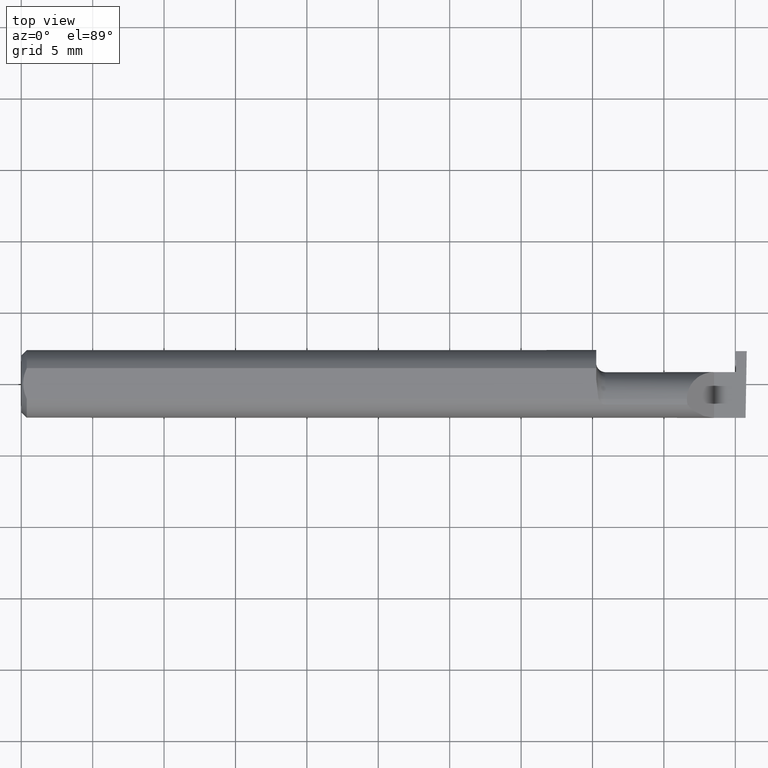
[diagram: clean part render]
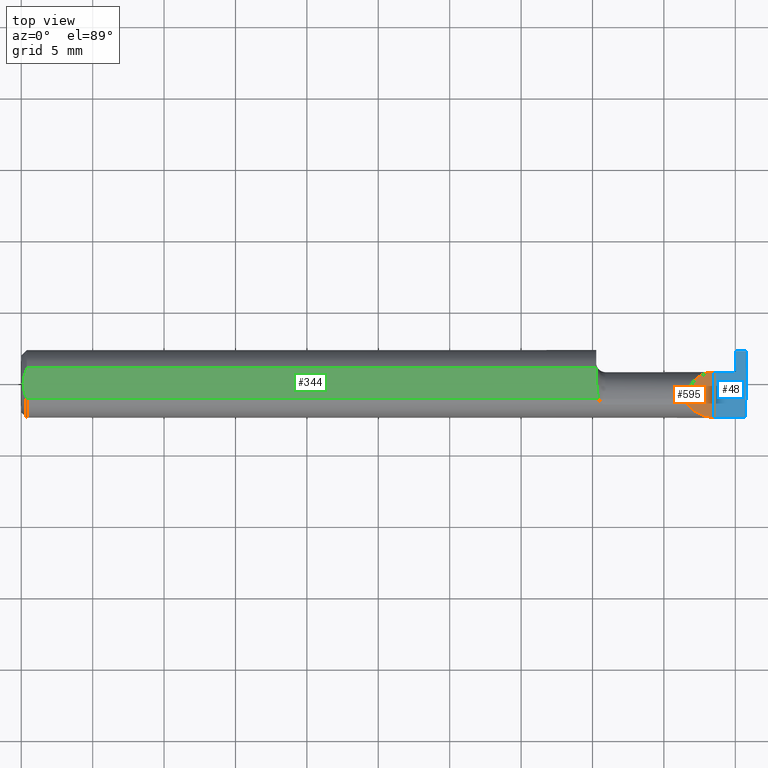
[diagram: same view with three faces highlighted in distinct colors, each labeled with its STEP entity id]
A machine part, top view with three faces highlighted in distinct colors.
Their STEP definitions:

[orange] entity #595 — the highlighted planar face has unit normal (-0.7071, 0, -0.7071).
#10 = CARTESIAN_POINT ( 'NONE',  ( 1.910000000000000142, -0.09359999999999998876, 1.102182119232621301E-17 ) ) ;
#17 = CARTESIAN_POINT ( 'NONE',  ( 1.910000000000000142, -0.1000000000000000056, 1.102182119232621301E-17 ) ) ;
#29 = DIRECTION ( 'NONE',  ( -0.000000000000000000, 1.000000000000000000, -0.000000000000000000 ) ) ;
#56 = DIRECTION ( 'NONE',  ( -0.7071067811865460184, 0.000000000000000000, 0.7071067811865490160 ) ) ;
#68 = VECTOR ( 'NONE', #29, 39.37007874015748143 ) ;
#77 = VERTEX_POINT ( 'NONE', #748 ) ;
#92 = EDGE_CURVE ( 'NONE', #705, #221, #635, .T. ) ;
#93 = CARTESIAN_POINT ( 'NONE',  ( 1.866066017177982594, 0.03240000000000000518, 0.04393398282201787380 ) ) ;
#96 =( BOUNDED_CURVE ( )  B_SPLINE_CURVE ( 3, ( #407, #214, #341, #349 ),
 .UNSPECIFIED., .F., .T. ) 
 B_SPLINE_CURVE_WITH_KNOTS ( ( 4, 4 ),
 ( 6.074922494366329140, 6.283185307179586232 ),
 .UNSPECIFIED. ) 
 CURVE ( )  GEOMETRIC_REPRESENTATION_ITEM ( )  RATIONAL_B_SPLINE_CURVE ( ( 1.000000000000000000, 0.9963888149483995926, 0.9963888149483995926, 1.000000000000000000 ) ) 
 REPRESENTATION_ITEM ( '' )  );
#141 = EDGE_LOOP ( 'NONE', ( #591, #660, #726, #356 ) ) ;
#153 = EDGE_CURVE ( 'NONE', #77, #243, #96, .T. ) ;
#168 = EDGE_CURVE ( 'NONE', #705, #77, #599, .T. ) ;
#193 = EDGE_CURVE ( 'NONE', #243, #221, #374, .T. ) ;
#214 = CARTESIAN_POINT ( 'NONE',  ( 1.835542168554754827, -0.05300374992736064245, 0.07445783144524570352 ) ) ;
#220 = CARTESIAN_POINT ( 'NONE',  ( 1.835000000000000409, -0.04259999999999998510, 0.07499999999999999722 ) ) ;
#221 = VERTEX_POINT ( 'NONE', #762 ) ;
#240 = AXIS2_PLACEMENT_3D ( 'NONE', #585, #648, #56 ) ;
#243 = VERTEX_POINT ( 'NONE', #301 ) ;
#301 = CARTESIAN_POINT ( 'NONE',  ( 1.835000000000000409, -0.04259999999999998510, 0.07499999999999999722 ) ) ;
#341 = CARTESIAN_POINT ( 'NONE',  ( 1.835000000000000409, -0.04781600192481531147, 0.07499999999999999722 ) ) ;
#349 = CARTESIAN_POINT ( 'NONE',  ( 1.835000000000000409, -0.04259999999999998510, 0.07499999999999999722 ) ) ;
#356 = ORIENTED_EDGE ( 'NONE', *, *, #193, .F. ) ;
#374 =( BOUNDED_CURVE ( )  B_SPLINE_CURVE ( 3, ( #220, #404, #93, #637 ),
 .UNSPECIFIED., .F., .T. ) 
 B_SPLINE_CURVE_WITH_KNOTS ( ( 4, 4 ),
 ( 0.000000000000000000, 1.570796326794896558 ),
 .UNSPECIFIED. ) 
 CURVE ( )  GEOMETRIC_REPRESENTATION_ITEM ( )  RATIONAL_B_SPLINE_CURVE ( ( 1.000000000000000000, 0.8047378541243649375, 0.8047378541243649375, 1.000000000000000000 ) ) 
 REPRESENTATION_ITEM ( '' )  );
#404 = CARTESIAN_POINT ( 'NONE',  ( 1.835000000000000187, 0.001333982822017879596, 0.07499999999999998335 ) ) ;
#407 = CARTESIAN_POINT ( 'NONE',  ( 1.836620632051322310, -0.05810704225352113922, 0.07337936794867826185 ) ) ;
#468 = CARTESIAN_POINT ( 'NONE',  ( 1.836620632051322310, -0.05810704225352113922, 0.07337936794867826185 ) ) ;
#475 = FACE_OUTER_BOUND ( 'NONE', #141, .T. ) ;
#528 = PLANE ( 'NONE',  #240 ) ;
#585 = CARTESIAN_POINT ( 'NONE',  ( 1.910000000000000142, -0.1000000000000000056, 1.102182119232621301E-17 ) ) ;
#591 = ORIENTED_EDGE ( 'NONE', *, *, #153, .F. ) ;
#595 = ADVANCED_FACE ( 'NONE', ( #475 ), #528, .F. ) ;
#596 = CARTESIAN_POINT ( 'NONE',  ( 1.854690286057537829, -0.08092595952420826577, 0.05530971394246238237 ) ) ;
#599 =( BOUNDED_CURVE ( )  B_SPLINE_CURVE ( 3, ( #656, #708, #596, #468 ),
 .UNSPECIFIED., .F., .F. ) 
 B_SPLINE_CURVE_WITH_KNOTS ( ( 4, 4 ),
 ( 4.712388980384689674, 5.613420356061718408 ),
 .UNSPECIFIED. ) 
 CURVE ( )  GEOMETRIC_REPRESENTATION_ITEM ( )  RATIONAL_B_SPLINE_CURVE ( ( 1.000000000000000000, 0.9334817841311876530, 0.9334817841311876530, 1.000000000000000000 ) ) 
 REPRESENTATION_ITEM ( '' )  );
#635 = LINE ( 'NONE', #17, #68 ) ;
#637 = CARTESIAN_POINT ( 'NONE',  ( 1.910000000000000142, 0.03240000000000002600, 1.102182119232621301E-17 ) ) ;
#648 = DIRECTION ( 'NONE',  ( -0.7071067811865490160, 0.000000000000000000, -0.7071067811865460184 ) ) ;
#656 = CARTESIAN_POINT ( 'NONE',  ( 1.910000000000000142, -0.09359999999999998876, 1.102182119232621301E-17 ) ) ;
#660 = ORIENTED_EDGE ( 'NONE', *, *, #168, .F. ) ;
#705 = VERTEX_POINT ( 'NONE', #10 ) ;
#708 = CARTESIAN_POINT ( 'NONE',  ( 1.880893035518783396, -0.09359999999999998876, 0.02910696448121675300 ) ) ;
#726 = ORIENTED_EDGE ( 'NONE', *, *, #92, .T. ) ;
#748 = CARTESIAN_POINT ( 'NONE',  ( 1.836620632051322310, -0.05810704225352113922, 0.07337936794867826185 ) ) ;
#762 = CARTESIAN_POINT ( 'NONE',  ( 1.910000000000000142, 0.03240000000000002600, 1.102182119232621301E-17 ) ) ;

[blue] entity #48 — the highlighted planar face has unit normal (-0, 0, -1).
#9 = VECTOR ( 'NONE', #384, 39.37007874015748143 ) ;
#10 = CARTESIAN_POINT ( 'NONE',  ( 1.910000000000000142, -0.09359999999999998876, 1.102182119232621301E-17 ) ) ;
#17 = CARTESIAN_POINT ( 'NONE',  ( 1.910000000000000142, -0.1000000000000000056, 1.102182119232621301E-17 ) ) ;
#24 = EDGE_LOOP ( 'NONE', ( #38, #138, #597, #428, #382, #530, #103 ) ) ;
#29 = DIRECTION ( 'NONE',  ( -0.000000000000000000, 1.000000000000000000, -0.000000000000000000 ) ) ;
#35 = VECTOR ( 'NONE', #665, 39.37007874015748143 ) ;
#38 = ORIENTED_EDGE ( 'NONE', *, *, #180, .F. ) ;
#48 = ADVANCED_FACE ( 'NONE', ( #441 ), #78, .F. ) ;
#68 = VECTOR ( 'NONE', #29, 39.37007874015748143 ) ;
#78 = PLANE ( 'NONE',  #449 ) ;
#88 = CARTESIAN_POINT ( 'NONE',  ( 2.000000000000000444, 0.09040000000000000813, -4.722041942173579765E-17 ) ) ;
#92 = EDGE_CURVE ( 'NONE', #705, #221, #635, .T. ) ;
#97 = CARTESIAN_POINT ( 'NONE',  ( 1.996789369178486595, -0.09359999999634724399, 1.727064904157919157E-17 ) ) ;
#100 = VERTEX_POINT ( 'NONE', #88 ) ;
#103 = ORIENTED_EDGE ( 'NONE', *, *, #92, .F. ) ;
#106 = CARTESIAN_POINT ( 'NONE',  ( 1.996678706298551820, -0.09994204647866641866, 4.067411700506801675E-19 ) ) ;
#128 = VERTEX_POINT ( 'NONE', #97 ) ;
#134 = CARTESIAN_POINT ( 'NONE',  ( 1.972825615918400111, -0.1004734632187760518, 3.327902248433222370E-18 ) ) ;
#136 = EDGE_CURVE ( 'NONE', #128, #100, #713, .T. ) ;
#138 = ORIENTED_EDGE ( 'NONE', *, *, #136, .T. ) ;
#156 = DIRECTION ( 'NONE',  ( 0.01744642479411313840, 0.9998477995484629233, -2.135106780035502721E-18 ) ) ;
#159 = LINE ( 'NONE', #590, #767 ) ;
#171 = VECTOR ( 'NONE', #311, 39.37007874015748854 ) ;
#180 = EDGE_CURVE ( 'NONE', #128, #705, #159, .T. ) ;
#189 = DIRECTION ( 'NONE',  ( -1.000000000000000000, -7.220189035068029059E-16, 1.224646799147358877E-16 ) ) ;
#221 = VERTEX_POINT ( 'NONE', #762 ) ;
#245 = CARTESIAN_POINT ( 'NONE',  ( 1.969499999999999806, 0.03240000000000001212, 5.082262127853098687E-17 ) ) ;
#295 = VERTEX_POINT ( 'NONE', #245 ) ;
#311 = DIRECTION ( 'NONE',  ( 0.01742050049977865098, -0.9998482515673751125, -2.130797594925076716E-18 ) ) ;
#319 = LINE ( 'NONE', #380, #9 ) ;
#328 = CARTESIAN_POINT ( 'NONE',  ( 1.970510542377208685, 0.03240000000000000518, 1.887975845471880136E-17 ) ) ;
#354 = EDGE_CURVE ( 'NONE', #221, #295, #319, .T. ) ;
#364 = CARTESIAN_POINT ( 'NONE',  ( 2.000000000000000000, 0.03240000000000002600, 1.170704816173023527E-32 ) ) ;
#380 = CARTESIAN_POINT ( 'NONE',  ( 1.584999999999999964, 0.03240000000000000518, 5.082284216461540301E-17 ) ) ;
#382 = ORIENTED_EDGE ( 'NONE', *, *, #754, .T. ) ;
#384 = DIRECTION ( 'NONE',  ( 1.000000000000000000, 0.000000000000000000, 0.000000000000000000 ) ) ;
#390 = VERTEX_POINT ( 'NONE', #328 ) ;
#420 = DIRECTION ( 'NONE',  ( -1.000000000000000000, -0.000000000000000000, -0.000000000000000000 ) ) ;
#426 = LINE ( 'NONE', #364, #655 ) ;
#428 = ORIENTED_EDGE ( 'NONE', *, *, #710, .T. ) ;
#429 = LINE ( 'NONE', #674, #35 ) ;
#441 = FACE_OUTER_BOUND ( 'NONE', #24, .T. ) ;
#449 = AXIS2_PLACEMENT_3D ( 'NONE', #510, #743, #757 ) ;
#477 = VECTOR ( 'NONE', #156, 39.37007874015748854 ) ;
#510 = CARTESIAN_POINT ( 'NONE',  ( 2.000000000000000000, -0.1000000000000000056, 0.000000000000000000 ) ) ;
#530 = ORIENTED_EDGE ( 'NONE', *, *, #354, .F. ) ;
#588 = VERTEX_POINT ( 'NONE', #724 ) ;
#590 = CARTESIAN_POINT ( 'NONE',  ( 2.999519565323743132E-32, -0.09359999999999998876, 2.449293598294717754E-16 ) ) ;
#597 = ORIENTED_EDGE ( 'NONE', *, *, #776, .F. ) ;
#607 = LINE ( 'NONE', #134, #171 ) ;
#635 = LINE ( 'NONE', #17, #68 ) ;
#655 = VECTOR ( 'NONE', #189, 39.37007874015748143 ) ;
#665 = DIRECTION ( 'NONE',  ( 1.000000000000000000, -0.000000000000000000, -0.000000000000000000 ) ) ;
#674 = CARTESIAN_POINT ( 'NONE',  ( 1.899999999999999911, 0.09040000000000000813, -3.918869757271545852E-19 ) ) ;
#705 = VERTEX_POINT ( 'NONE', #10 ) ;
#710 = EDGE_CURVE ( 'NONE', #588, #390, #607, .T. ) ;
#713 = LINE ( 'NONE', #106, #477 ) ;
#724 = CARTESIAN_POINT ( 'NONE',  ( 1.969499999999999806, 0.09040000000000000813, -3.918869757271545852E-19 ) ) ;
#743 = DIRECTION ( 'NONE',  ( -1.224646799147358877E-16, 0.000000000000000000, -1.000000000000000000 ) ) ;
#754 = EDGE_CURVE ( 'NONE', #390, #295, #426, .T. ) ;
#757 = DIRECTION ( 'NONE',  ( -1.000000000000000000, 0.000000000000000000, 1.224646799147358877E-16 ) ) ;
#762 = CARTESIAN_POINT ( 'NONE',  ( 1.910000000000000142, 0.03240000000000002600, 1.102182119232621301E-17 ) ) ;
#767 = VECTOR ( 'NONE', #420, 39.37007874015748143 ) ;
#776 = EDGE_CURVE ( 'NONE', #588, #100, #429, .T. ) ;

[green] entity #344 — the highlighted planar face has unit normal (0, -0, 1).
#3 = CARTESIAN_POINT ( 'NONE',  ( 0.004999999999999977553, 0.007308422719211852582, 0.08359999999999999376 ) ) ;
#12 = LINE ( 'NONE', #178, #316 ) ;
#40 = EDGE_CURVE ( 'NONE', #288, #683, #569, .T. ) ;
#55 = EDGE_CURVE ( 'NONE', #683, #322, #335, .T. ) ;
#70 = DIRECTION ( 'NONE',  ( -0.000000000000000000, 1.000000000000000000, 0.000000000000000000 ) ) ;
#79 = VECTOR ( 'NONE', #506, 39.37007874015748143 ) ;
#122 = DIRECTION ( 'NONE',  ( 0.000000000000000000, -0.000000000000000000, 1.000000000000000000 ) ) ;
#144 = CARTESIAN_POINT ( 'NONE',  ( 1.591129652885479029, -0.04209513035970094408, 0.08359999999999999376 ) ) ;
#165 = VECTOR ( 'NONE', #457, 39.37007874015748143 ) ;
#170 = EDGE_LOOP ( 'NONE', ( #183, #326, #575, #482, #254, #612 ) ) ;
#178 = CARTESIAN_POINT ( 'NONE',  ( 1.584999999999999520, -0.09360000000000003040, 0.08359999999999999376 ) ) ;
#183 = ORIENTED_EDGE ( 'NONE', *, *, #40, .T. ) ;
#190 = CARTESIAN_POINT ( 'NONE',  ( 0.01499999999999999944, -0.04209513035969836975, 0.08359999999999999376 ) ) ;
#233 = CARTESIAN_POINT ( 'NONE',  ( 0.01499999999999999598, 0.04209513035969836975, 0.08359999999999999376 ) ) ;
#235 = EDGE_CURVE ( 'NONE', #322, #719, #12, .T. ) ;
#252 = EDGE_CURVE ( 'NONE', #638, #285, #445, .T. ) ;
#254 = ORIENTED_EDGE ( 'NONE', *, *, #252, .T. ) ;
#258 = CARTESIAN_POINT ( 'NONE',  ( 0.000000000000000000, 0.04209513035969836975, 0.08359999999999999376 ) ) ;
#259 = B_SPLINE_CURVE_WITH_KNOTS ( 'NONE', 3,
 ( #756, #447, #628, #686, #393, #551 ),
 .UNSPECIFIED., .F., .F.,
 ( 4, 2, 4 ),
 ( 0.002614097267282502243, 0.003163218599391118095, 0.003712339931499734381 ),
 .UNSPECIFIED. ) ;
#264 = LINE ( 'NONE', #258, #79 ) ;
#285 = VERTEX_POINT ( 'NONE', #494 ) ;
#288 = VERTEX_POINT ( 'NONE', #190 ) ;
#308 = AXIS2_PLACEMENT_3D ( 'NONE', #666, #122, #556 ) ;
#315 = CARTESIAN_POINT ( 'NONE',  ( 1.584999999999999520, 0.003280657920457031966, 0.08359999999999999376 ) ) ;
#316 = VECTOR ( 'NONE', #70, 39.37007874015748143 ) ;
#322 = VERTEX_POINT ( 'NONE', #600 ) ;
#326 = ORIENTED_EDGE ( 'NONE', *, *, #55, .T. ) ;
#335 = B_SPLINE_CURVE_WITH_KNOTS ( 'NONE', 3,
 ( #144, #381, #561, #624, #315, #740 ),
 .UNSPECIFIED., .F., .F.,
 ( 4, 2, 4 ),
 ( 0.009672910729349781800, 0.01035804079918456987, 0.01104317086901935793 ),
 .UNSPECIFIED. ) ;
#344 = ADVANCED_FACE ( 'NONE', ( #430 ), #671, .T. ) ;
#360 = CARTESIAN_POINT ( 'NONE',  ( 1.591129652885479029, -0.04209513035970094408, 0.08359999999999999376 ) ) ;
#370 = EDGE_CURVE ( 'NONE', #719, #638, #264, .T. ) ;
#378 = CARTESIAN_POINT ( 'NONE',  ( 1.584999999999999520, 0.04209513035969834893, 0.08359999999999999376 ) ) ;
#381 = CARTESIAN_POINT ( 'NONE',  ( 1.591082007218903360, -0.03301619840524110810, 0.08359999999999997988 ) ) ;
#393 = CARTESIAN_POINT ( 'NONE',  ( 0.01206089165507020187, -0.03555991978469316694, 0.08359999999999999376 ) ) ;
#398 = EDGE_CURVE ( 'NONE', #285, #288, #259, .T. ) ;
#430 = FACE_OUTER_BOUND ( 'NONE', #170, .T. ) ;
#445 = B_SPLINE_CURVE_WITH_KNOTS ( 'NONE', 3,
 ( #233, #662, #490, #736, #3, #540 ),
 .UNSPECIFIED., .F., .F.,
 ( 4, 2, 4 ),
 ( 0.001518921481343300838, 0.002066509374312901649, 0.002614097267282502243 ),
 .UNSPECIFIED. ) ;
#447 = CARTESIAN_POINT ( 'NONE',  ( 0.004999999999999974083, -0.007328888879231052096, 0.08359999999999997988 ) ) ;
#457 = DIRECTION ( 'NONE',  ( 1.000000000000000000, 0.000000000000000000, 0.000000000000000000 ) ) ;
#482 = ORIENTED_EDGE ( 'NONE', *, *, #370, .T. ) ;
#490 = CARTESIAN_POINT ( 'NONE',  ( 0.009492654797564226143, 0.02859466010166631864, 0.08360000000000000764 ) ) ;
#494 = CARTESIAN_POINT ( 'NONE',  ( 0.004999999999999986226, 1.025183015402604432E-17, 0.08359999999999999376 ) ) ;
#506 = DIRECTION ( 'NONE',  ( -1.000000000000000000, -0.000000000000000000, -0.000000000000000000 ) ) ;
#540 = CARTESIAN_POINT ( 'NONE',  ( 0.004999999999999986226, 1.025183015402604432E-17, 0.08359999999999999376 ) ) ;
#551 = CARTESIAN_POINT ( 'NONE',  ( 0.01499999999999999944, -0.04209513035969836975, 0.08359999999999999376 ) ) ;
#556 = DIRECTION ( 'NONE',  ( 1.000000000000000000, 0.000000000000000000, -0.000000000000000000 ) ) ;
#561 = CARTESIAN_POINT ( 'NONE',  ( 1.589570820222980130, -0.02392027542784326555, 0.08360000000000000764 ) ) ;
#569 = LINE ( 'NONE', #574, #165 ) ;
#574 = CARTESIAN_POINT ( 'NONE',  ( 0.000000000000000000, -0.04209513035969836975, 0.08359999999999999376 ) ) ;
#575 = ORIENTED_EDGE ( 'NONE', *, *, #235, .T. ) ;
#600 = CARTESIAN_POINT ( 'NONE',  ( 1.584999999999999520, 0.01227294415283364248, 0.08359999999999999376 ) ) ;
#612 = ORIENTED_EDGE ( 'NONE', *, *, #398, .T. ) ;
#624 = CARTESIAN_POINT ( 'NONE',  ( 1.586463898467976641, -0.005727447913487648465, 0.08359999999999997988 ) ) ;
#628 = CARTESIAN_POINT ( 'NONE',  ( 0.005975039161239316735, -0.01453776427033148973, 0.08360000000000000764 ) ) ;
#638 = VERTEX_POINT ( 'NONE', #670 ) ;
#662 = CARTESIAN_POINT ( 'NONE',  ( 0.01203648650249646186, 0.03550565407121129141, 0.08359999999999997988 ) ) ;
#666 = CARTESIAN_POINT ( 'NONE',  ( 2.000000000000000000, -0.09360000000000003040, 0.08359999999999999376 ) ) ;
#670 = CARTESIAN_POINT ( 'NONE',  ( 0.01499999999999999598, 0.04209513035969836975, 0.08359999999999999376 ) ) ;
#671 = PLANE ( 'NONE',  #308 ) ;
#683 = VERTEX_POINT ( 'NONE', #360 ) ;
#686 = CARTESIAN_POINT ( 'NONE',  ( 0.009539353699420717939, -0.02875682547511373283, 0.08359999999999997988 ) ) ;
#719 = VERTEX_POINT ( 'NONE', #378 ) ;
#736 = CARTESIAN_POINT ( 'NONE',  ( 0.005981829149300633627, 0.01454044632356571096, 0.08359999999999997988 ) ) ;
#740 = CARTESIAN_POINT ( 'NONE',  ( 1.584999999999999520, 0.01227294415283364248, 0.08359999999999999376 ) ) ;
#756 = CARTESIAN_POINT ( 'NONE',  ( 0.004999999999999986226, 1.025183015402604432E-17, 0.08359999999999999376 ) ) ;